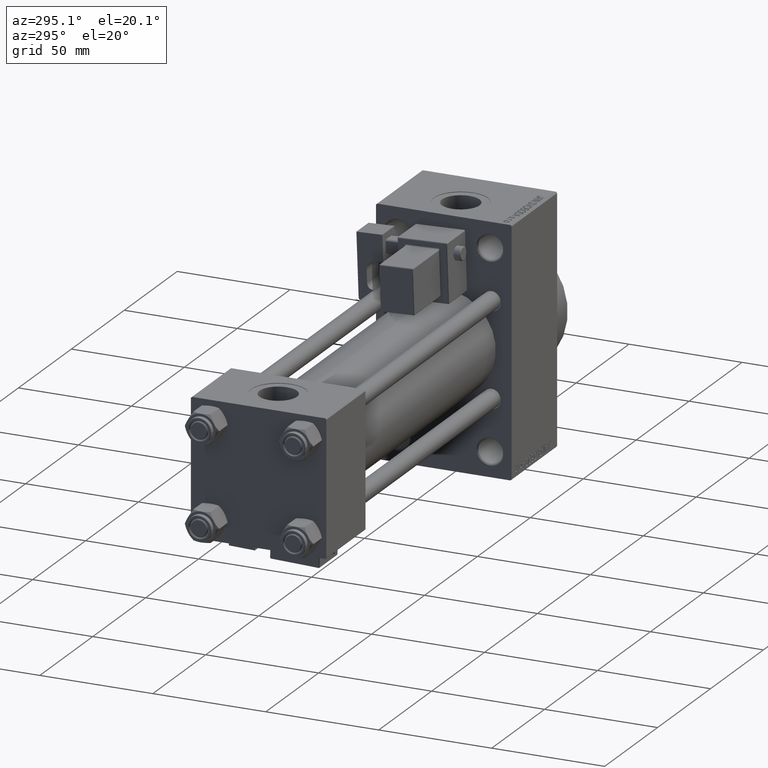
[diagram: clean part render]
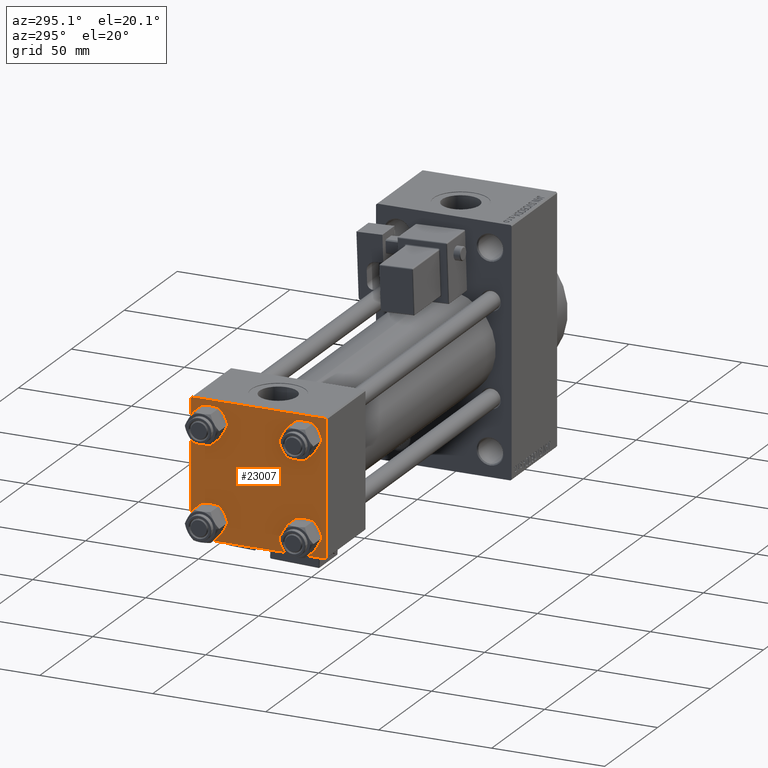
[diagram: same view with one face highlighted and labeled with its STEP entity id]
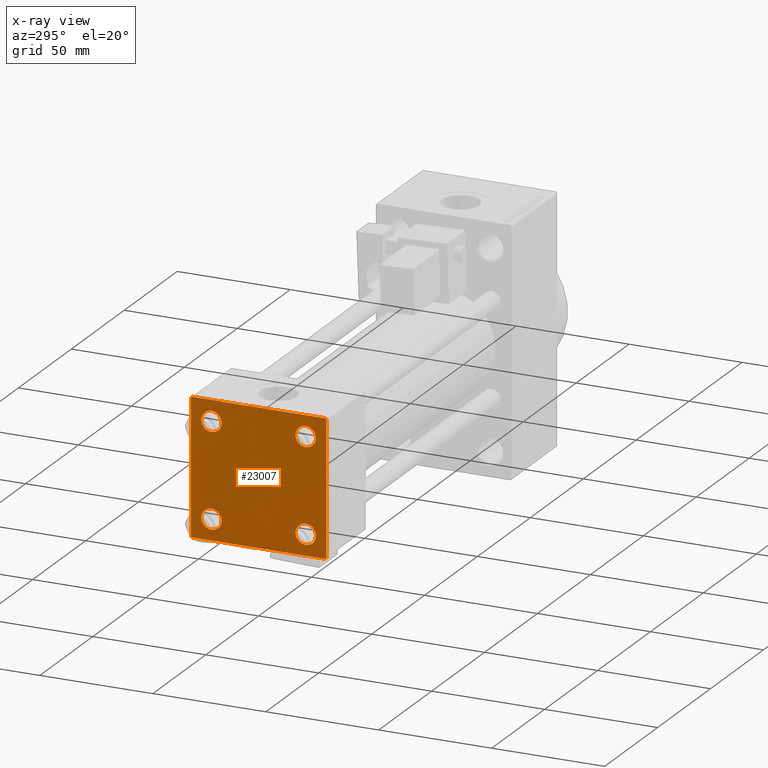
[diagram: x-ray of the same camera — body ghosted, the highlighted face saturated]
A machine part, auxiliary view. The second image highlights one B-rep face of the part: STEP entity #23007.
The next image is the same camera in x-ray: the body ghosted, the highlighted face saturated — about 0% of this face is hidden behind the body in this view.
In plain terms, the highlighted planar face has unit normal (-1, 0, 0).
Its self-contained STEP definition (entity closure, byte-faithful):
#367 = DIRECTION ( 'NONE',  ( 1.000000000000000000, -0.000000000000000000, 0.000000000000000000 ) ) ;
#715 = DIRECTION ( 'NONE',  ( -1.000000000000000000, 0.000000000000000000, -0.000000000000000000 ) ) ;
#1002 = AXIS2_PLACEMENT_3D ( 'NONE', #22176, #37489, #3055 ) ;
#1054 = CIRCLE ( 'NONE', #35583, 4.500000000000017764 ) ;
#1130 = DIRECTION ( 'NONE',  ( 0.000000000000000000, 0.000000000000000000, -1.000000000000000000 ) ) ;
#1135 = ORIENTED_EDGE ( 'NONE', *, *, #6077, .T. ) ;
#1189 = CARTESIAN_POINT ( 'NONE',  ( 0.000000000000000000, 20.84999999999999787, -16.34999999999998366 ) ) ;
#1242 = DIRECTION ( 'NONE',  ( 0.000000000000000000, 0.000000000000000000, 1.000000000000000000 ) ) ;
#2320 = EDGE_CURVE ( 'NONE', #29282, #4476, #25340, .T. ) ;
#2336 = VECTOR ( 'NONE', #43461, 1000.000000000000000 ) ;
#2616 = CARTESIAN_POINT ( 'NONE',  ( 0.000000000000000000, -20.84999999999999076, 20.85000000000000497 ) ) ;
#2701 = VERTEX_POINT ( 'NONE', #39235 ) ;
#3055 = DIRECTION ( 'NONE',  ( 0.000000000000000000, 0.000000000000000000, 1.000000000000000000 ) ) ;
#3143 = CARTESIAN_POINT ( 'NONE',  ( 0.000000000000000000, 20.84999999999999787, 16.34999999999998366 ) ) ;
#3547 = VECTOR ( 'NONE', #8915, 999.9999999999998863 ) ;
#3907 = CIRCLE ( 'NONE', #16767, 4.500000000000017764 ) ;
#4204 = EDGE_CURVE ( 'NONE', #4476, #34938, #46030, .T. ) ;
#4476 = VERTEX_POINT ( 'NONE', #30372 ) ;
#4658 = VERTEX_POINT ( 'NONE', #25080 ) ;
#4977 = AXIS2_PLACEMENT_3D ( 'NONE', #11124, #14410, #25714 ) ;
#5649 = LINE ( 'NONE', #37241, #32124 ) ;
#5913 = VERTEX_POINT ( 'NONE', #3143 ) ;
#5960 = EDGE_LOOP ( 'NONE', ( #20251, #13322 ) ) ;
#6077 = EDGE_CURVE ( 'NONE', #23358, #7447, #3907, .T. ) ;
#6542 = ORIENTED_EDGE ( 'NONE', *, *, #36041, .F. ) ;
#6705 = VECTOR ( 'NONE', #34432, 1000.000000000000000 ) ;
#6757 = DIRECTION ( 'NONE',  ( -0.000000000000000000, 0.7071067811865474617, 0.7071067811865474617 ) ) ;
#7447 = VERTEX_POINT ( 'NONE', #43886 ) ;
#7794 = AXIS2_PLACEMENT_3D ( 'NONE', #14211, #29532, #45139 ) ;
#7965 = CARTESIAN_POINT ( 'NONE',  ( 0.000000000000000000, 29.74999999999999645, 29.74999999999999645 ) ) ;
#8038 = LINE ( 'NONE', #37980, #6705 ) ;
#8253 = PLANE ( 'NONE',  #15631 ) ;
#8915 = DIRECTION ( 'NONE',  ( -0.000000000000000000, -0.7071067811865574537, -0.7071067811865376918 ) ) ;
#9196 = EDGE_CURVE ( 'NONE', #4658, #27508, #41688, .T. ) ;
#9576 = CARTESIAN_POINT ( 'NONE',  ( 0.000000000000000000, -29.49999999999998579, 29.99999999999999289 ) ) ;
#10908 = DIRECTION ( 'NONE',  ( 0.000000000000000000, 0.000000000000000000, 1.000000000000000000 ) ) ;
#11124 = CARTESIAN_POINT ( 'NONE',  ( 0.000000000000000000, -20.84999999999999076, -20.85000000000000497 ) ) ;
#11132 = LINE ( 'NONE', #38283, #26523 ) ;
#11535 = VERTEX_POINT ( 'NONE', #38636 ) ;
#11812 = CIRCLE ( 'NONE', #7794, 4.500000000000017764 ) ;
#12551 = CARTESIAN_POINT ( 'NONE',  ( 0.000000000000000000, 20.84999999999999787, -20.85000000000000142 ) ) ;
#12941 = CARTESIAN_POINT ( 'NONE',  ( 0.000000000000000000, 29.74999999999957723, -29.75000000000040501 ) ) ;
#13050 = EDGE_CURVE ( 'NONE', #14457, #11535, #27426, .T. ) ;
#13322 = ORIENTED_EDGE ( 'NONE', *, *, #41956, .T. ) ;
#14211 = CARTESIAN_POINT ( 'NONE',  ( 0.000000000000000000, -20.84999999999999076, -20.85000000000000497 ) ) ;
#14410 = DIRECTION ( 'NONE',  ( 1.000000000000000000, -0.000000000000000000, 0.000000000000000000 ) ) ;
#14457 = VERTEX_POINT ( 'NONE', #22287 ) ;
#15032 = DIRECTION ( 'NONE',  ( 0.000000000000000000, 0.7071067811865474617, -0.7071067811865474617 ) ) ;
#15279 = LINE ( 'NONE', #7965, #23594 ) ;
#15631 = AXIS2_PLACEMENT_3D ( 'NONE', #19091, #715, #19839 ) ;
#16072 = CARTESIAN_POINT ( 'NONE',  ( 0.000000000000000000, 29.49999999999997868, -30.00000000000000000 ) ) ;
#16109 = EDGE_CURVE ( 'NONE', #2701, #27508, #8038, .T. ) ;
#16767 = AXIS2_PLACEMENT_3D ( 'NONE', #37804, #22240, #10908 ) ;
#16864 = VECTOR ( 'NONE', #6757, 1000.000000000000114 ) ;
#17505 = CIRCLE ( 'NONE', #19109, 4.500000000000017764 ) ;
#18344 = ORIENTED_EDGE ( 'NONE', *, *, #44121, .T. ) ;
#18456 = EDGE_CURVE ( 'NONE', #32107, #29282, #24257, .T. ) ;
#19091 = CARTESIAN_POINT ( 'NONE',  ( 0.000000000000000000, 0.000000000000000000, 0.000000000000000000 ) ) ;
#19109 = AXIS2_PLACEMENT_3D ( 'NONE', #45949, #38391, #29846 ) ;
#19739 = EDGE_CURVE ( 'NONE', #20135, #32480, #1054, .T. ) ;
#19839 = DIRECTION ( 'NONE',  ( -0.000000000000000000, 0.000000000000000000, 1.000000000000000000 ) ) ;
#20121 = AXIS2_PLACEMENT_3D ( 'NONE', #2616, #25476, #37297 ) ;
#20135 = VERTEX_POINT ( 'NONE', #1189 ) ;
#20251 = ORIENTED_EDGE ( 'NONE', *, *, #19739, .T. ) ;
#21147 = ORIENTED_EDGE ( 'NONE', *, *, #2320, .T. ) ;
#21231 = CIRCLE ( 'NONE', #45314, 4.500000000000017764 ) ;
#21387 = CARTESIAN_POINT ( 'NONE',  ( 0.000000000000000000, 20.84999999999999787, -25.35000000000001918 ) ) ;
#22176 = CARTESIAN_POINT ( 'NONE',  ( 0.000000000000000000, 20.84999999999999787, -20.85000000000000142 ) ) ;
#22240 = DIRECTION ( 'NONE',  ( 1.000000000000000000, -0.000000000000000000, 0.000000000000000000 ) ) ;
#22287 = CARTESIAN_POINT ( 'NONE',  ( 0.000000000000000000, -20.84999999999999076, -25.35000000000002274 ) ) ;
#22600 = CARTESIAN_POINT ( 'NONE',  ( -0.000000000000000000, -29.74999999999999645, 29.74999999999999645 ) ) ;
#23007 = ADVANCED_FACE ( 'NONE', ( #46733, #38925, #45743, #30882, #46237 ), #8253, .T. ) ;
#23022 = DIRECTION ( 'NONE',  ( 0.000000000000000000, 0.000000000000000000, 1.000000000000000000 ) ) ;
#23358 = VERTEX_POINT ( 'NONE', #45196 ) ;
#23594 = VECTOR ( 'NONE', #15032, 1000.000000000000114 ) ;
#24257 = LINE ( 'NONE', #12941, #3547 ) ;
#25080 = CARTESIAN_POINT ( 'NONE',  ( 0.000000000000000000, -30.00000000000000000, 29.49999999999999289 ) ) ;
#25340 = LINE ( 'NONE', #40668, #2336 ) ;
#25476 = DIRECTION ( 'NONE',  ( 1.000000000000000000, -0.000000000000000000, 0.000000000000000000 ) ) ;
#25714 = DIRECTION ( 'NONE',  ( 0.000000000000000000, 0.000000000000000000, 1.000000000000000000 ) ) ;
#25972 = EDGE_CURVE ( 'NONE', #11535, #14457, #11812, .T. ) ;
#26476 = ORIENTED_EDGE ( 'NONE', *, *, #34666, .T. ) ;
#26523 = VECTOR ( 'NONE', #49369, 1000.000000000000000 ) ;
#27426 = CIRCLE ( 'NONE', #4977, 4.500000000000017764 ) ;
#27508 = VERTEX_POINT ( 'NONE', #9576 ) ;
#27812 = CARTESIAN_POINT ( 'NONE',  ( 0.000000000000000000, 29.99999999999999289, 29.50000000000000000 ) ) ;
#28615 = EDGE_CURVE ( 'NONE', #5913, #38739, #17505, .T. ) ;
#28719 = VERTEX_POINT ( 'NONE', #27812 ) ;
#29100 = ORIENTED_EDGE ( 'NONE', *, *, #4204, .T. ) ;
#29282 = VERTEX_POINT ( 'NONE', #16072 ) ;
#29532 = DIRECTION ( 'NONE',  ( 1.000000000000000000, -0.000000000000000000, 0.000000000000000000 ) ) ;
#29846 = DIRECTION ( 'NONE',  ( 0.000000000000000000, 0.000000000000000000, 1.000000000000000000 ) ) ;
#29960 = ORIENTED_EDGE ( 'NONE', *, *, #28615, .T. ) ;
#30372 = CARTESIAN_POINT ( 'NONE',  ( 0.000000000000000000, -29.50000000000000000, -30.00000000000000711 ) ) ;
#30882 = FACE_BOUND ( 'NONE', #39966, .T. ) ;
#31894 = DIRECTION ( 'NONE',  ( 1.000000000000000000, -0.000000000000000000, 0.000000000000000000 ) ) ;
#32107 = VERTEX_POINT ( 'NONE', #34518 ) ;
#32124 = VECTOR ( 'NONE', #1130, 1000.000000000000000 ) ;
#32480 = VERTEX_POINT ( 'NONE', #21387 ) ;
#33108 = ORIENTED_EDGE ( 'NONE', *, *, #13050, .T. ) ;
#34313 = CARTESIAN_POINT ( 'NONE',  ( 0.000000000000000000, 20.84999999999999787, 20.85000000000000142 ) ) ;
#34341 = ORIENTED_EDGE ( 'NONE', *, *, #34719, .T. ) ;
#34432 = DIRECTION ( 'NONE',  ( 0.000000000000000000, -1.000000000000000000, -1.156482317317871725E-16 ) ) ;
#34518 = CARTESIAN_POINT ( 'NONE',  ( 0.000000000000000000, 29.99999999999999289, -29.50000000000000000 ) ) ;
#34666 = EDGE_CURVE ( 'NONE', #7447, #23358, #41787, .T. ) ;
#34688 = CARTESIAN_POINT ( 'NONE',  ( 0.000000000000000000, -29.75000000000001066, -29.75000000000001066 ) ) ;
#34719 = EDGE_CURVE ( 'NONE', #28719, #32107, #11132, .T. ) ;
#34938 = VERTEX_POINT ( 'NONE', #40509 ) ;
#35244 = EDGE_LOOP ( 'NONE', ( #36458, #33108 ) ) ;
#35583 = AXIS2_PLACEMENT_3D ( 'NONE', #12551, #31894, #1242 ) ;
#36041 = EDGE_CURVE ( 'NONE', #4658, #34938, #5649, .T. ) ;
#36458 = ORIENTED_EDGE ( 'NONE', *, *, #25972, .T. ) ;
#37241 = CARTESIAN_POINT ( 'NONE',  ( 0.000000000000000000, -30.00000000000000000, 29.99999999999999289 ) ) ;
#37297 = DIRECTION ( 'NONE',  ( 0.000000000000000000, 0.000000000000000000, 1.000000000000000000 ) ) ;
#37489 = DIRECTION ( 'NONE',  ( 1.000000000000000000, -0.000000000000000000, 0.000000000000000000 ) ) ;
#37804 = CARTESIAN_POINT ( 'NONE',  ( 0.000000000000000000, -20.84999999999999076, 20.85000000000000497 ) ) ;
#37980 = CARTESIAN_POINT ( 'NONE',  ( 0.000000000000000000, 29.99999999999999289, 30.00000000000000000 ) ) ;
#37990 = DIRECTION ( 'NONE',  ( 0.000000000000000000, -0.7071067811865474617, 0.7071067811865474617 ) ) ;
#38283 = CARTESIAN_POINT ( 'NONE',  ( 0.000000000000000000, 29.99999999999999289, 30.00000000000000000 ) ) ;
#38391 = DIRECTION ( 'NONE',  ( 1.000000000000000000, -0.000000000000000000, 0.000000000000000000 ) ) ;
#38636 = CARTESIAN_POINT ( 'NONE',  ( 0.000000000000000000, -20.84999999999999076, -16.34999999999998721 ) ) ;
#38739 = VERTEX_POINT ( 'NONE', #47351 ) ;
#38925 = FACE_BOUND ( 'NONE', #35244, .T. ) ;
#39235 = CARTESIAN_POINT ( 'NONE',  ( 0.000000000000000000, 29.49999999999999289, 30.00000000000000000 ) ) ;
#39966 = EDGE_LOOP ( 'NONE', ( #40161, #29960 ) ) ;
#40082 = VECTOR ( 'NONE', #37990, 1000.000000000000114 ) ;
#40161 = ORIENTED_EDGE ( 'NONE', *, *, #45297, .T. ) ;
#40509 = CARTESIAN_POINT ( 'NONE',  ( 0.000000000000000000, -30.00000000000000000, -29.50000000000001776 ) ) ;
#40668 = CARTESIAN_POINT ( 'NONE',  ( 0.000000000000000000, 29.99999999999999289, -30.00000000000000000 ) ) ;
#41688 = LINE ( 'NONE', #22600, #16864 ) ;
#41787 = CIRCLE ( 'NONE', #20121, 4.500000000000017764 ) ;
#41956 = EDGE_CURVE ( 'NONE', #32480, #20135, #44376, .T. ) ;
#42317 = ORIENTED_EDGE ( 'NONE', *, *, #16109, .F. ) ;
#43439 = ORIENTED_EDGE ( 'NONE', *, *, #18456, .T. ) ;
#43461 = DIRECTION ( 'NONE',  ( 0.000000000000000000, -1.000000000000000000, -1.156482317317871725E-16 ) ) ;
#43886 = CARTESIAN_POINT ( 'NONE',  ( 0.000000000000000000, -20.84999999999999076, 16.34999999999998721 ) ) ;
#44121 = EDGE_CURVE ( 'NONE', #2701, #28719, #15279, .T. ) ;
#44140 = ORIENTED_EDGE ( 'NONE', *, *, #9196, .T. ) ;
#44376 = CIRCLE ( 'NONE', #1002, 4.500000000000017764 ) ;
#45139 = DIRECTION ( 'NONE',  ( 0.000000000000000000, 0.000000000000000000, 1.000000000000000000 ) ) ;
#45196 = CARTESIAN_POINT ( 'NONE',  ( 0.000000000000000000, -20.84999999999999076, 25.35000000000002274 ) ) ;
#45297 = EDGE_CURVE ( 'NONE', #38739, #5913, #21231, .T. ) ;
#45314 = AXIS2_PLACEMENT_3D ( 'NONE', #34313, #367, #23022 ) ;
#45604 = EDGE_LOOP ( 'NONE', ( #34341, #43439, #21147, #29100, #6542, #44140, #42317, #18344 ) ) ;
#45743 = FACE_BOUND ( 'NONE', #5960, .T. ) ;
#45949 = CARTESIAN_POINT ( 'NONE',  ( 0.000000000000000000, 20.84999999999999787, 20.85000000000000142 ) ) ;
#46030 = LINE ( 'NONE', #34688, #40082 ) ;
#46237 = FACE_OUTER_BOUND ( 'NONE', #45604, .T. ) ;
#46733 = FACE_BOUND ( 'NONE', #47648, .T. ) ;
#47351 = CARTESIAN_POINT ( 'NONE',  ( 0.000000000000000000, 20.84999999999999787, 25.35000000000001918 ) ) ;
#47648 = EDGE_LOOP ( 'NONE', ( #1135, #26476 ) ) ;
#49369 = DIRECTION ( 'NONE',  ( 0.000000000000000000, 0.000000000000000000, -1.000000000000000000 ) ) ;